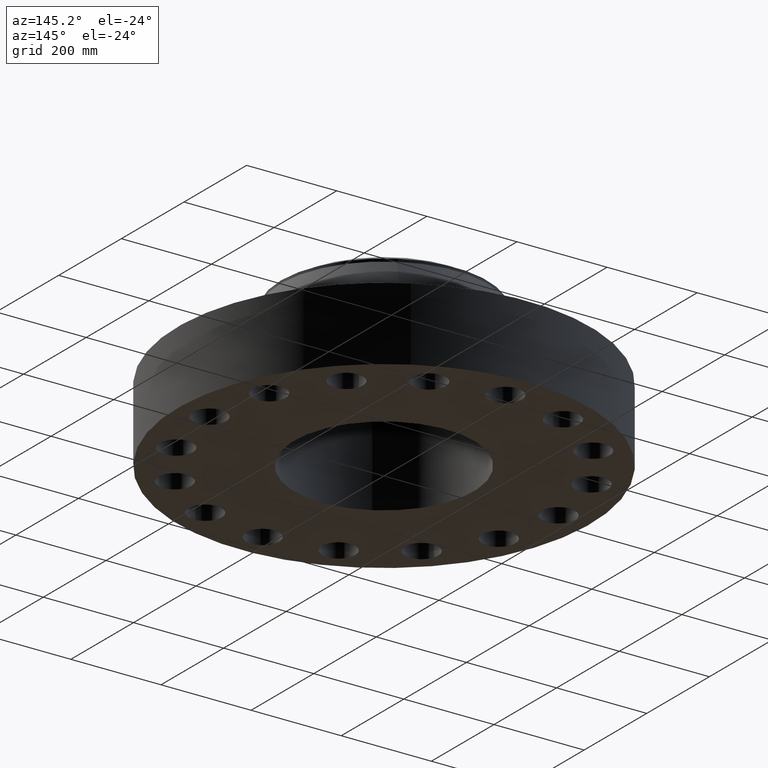
[diagram: clean part render]
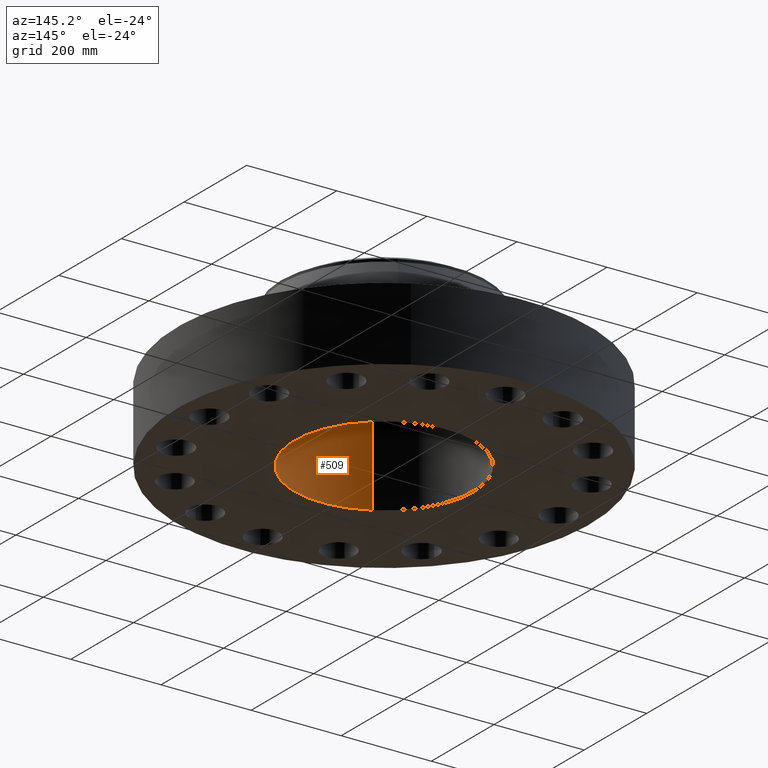
[diagram: same view with one face highlighted and labeled with its STEP entity id]
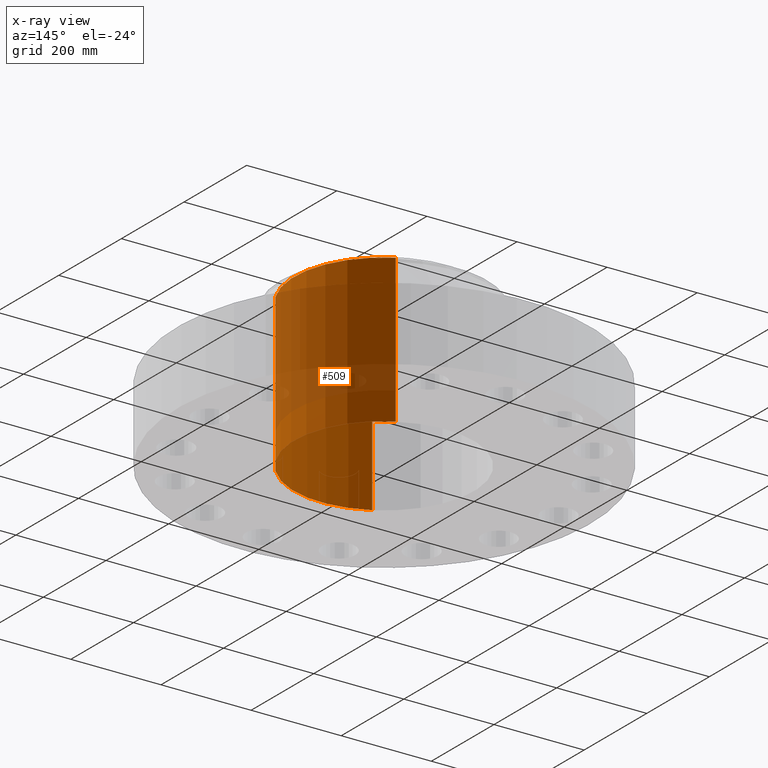
[diagram: x-ray of the same camera — body ghosted, the highlighted face saturated]
A machine part, auxiliary view. The second image highlights one B-rep face of the part: STEP entity #509.
The next image is the same camera in x-ray: the body ghosted, the highlighted face saturated — about 52% of this face is hidden behind the body in this view.
In plain terms, the highlighted cylindrical surface (partial cylindrical patch) has radius 199.238 mm, axis along (0, 0, -1).
Its self-contained STEP definition (entity closure, byte-faithful):
#444=AXIS2_PLACEMENT_3D('Circle Axis2P3D',#442,#443,$) ;
#470=AXIS2_PLACEMENT_3D('Cylinder Axis2P3D',#467,#468,#469) ;
#500=AXIS2_PLACEMENT_3D('Circle Axis2P3D',#498,#499,$) ;
#437=CARTESIAN_POINT('Vertex',(-3.76061392483,-6.8837576155,12.8800000001)) ;
#439=CARTESIAN_POINT('Vertex',(3.76061392483,6.8837576155,12.8800000001)) ;
#442=CARTESIAN_POINT('Axis2P3D Location',(0.,0.,12.8800000001)) ;
#467=CARTESIAN_POINT('Axis2P3D Location',(0.,0.,6.44000000003)) ;
#472=CARTESIAN_POINT('Line Origine',(-3.76061392483,-6.8837576155,6.44000000003)) ;
#476=CARTESIAN_POINT('Vertex',(-3.76061392483,-6.8837576155,-6.04241066631E-014)) ;
#483=CARTESIAN_POINT('Vertex',(3.76061392483,6.8837576155,-6.04241066631E-014)) ;
#486=CARTESIAN_POINT('Line Origine',(3.76061392483,6.8837576155,6.44000000003)) ;
#498=CARTESIAN_POINT('Axis2P3D Location',(0.,0.,-6.04241066631E-014)) ;
#443=DIRECTION('Axis2P3D Direction',(0.,0.,-0.0393700787402)) ;
#468=DIRECTION('Axis2P3D Direction',(0.,0.,-0.0393700787402)) ;
#469=DIRECTION('Axis2P3D XDirection',(0.0188750212049,0.0345504945626,0.)) ;
#473=DIRECTION('Vector Direction',(0.,0.,-0.0393700787402)) ;
#487=DIRECTION('Vector Direction',(0.,0.,-0.0393700787402)) ;
#499=DIRECTION('Axis2P3D Direction',(0.,0.,-0.0393700787402)) ;
#474=VECTOR('Line Direction',#473,0.0393700787402) ;
#488=VECTOR('Line Direction',#487,0.0393700787402) ;
#504=ORIENTED_EDGE('',*,*,#446,.F.) ;
#505=ORIENTED_EDGE('',*,*,#490,.T.) ;
#506=ORIENTED_EDGE('',*,*,#502,.T.) ;
#507=ORIENTED_EDGE('',*,*,#478,.F.) ;
#509=ADVANCED_FACE('PartBody',(#508),#471,.F.) ;
#445=CIRCLE('generated circle',#444,7.84400000003) ;
#501=CIRCLE('generated circle',#500,7.84400000003) ;
#471=CYLINDRICAL_SURFACE('generated cylinder',#470,7.84400000003) ;
#446=EDGE_CURVE('',#440,#438,#445,.T.) ;
#478=EDGE_CURVE('',#438,#477,#475,.T.) ;
#490=EDGE_CURVE('',#440,#484,#489,.T.) ;
#502=EDGE_CURVE('',#484,#477,#501,.T.) ;
#503=EDGE_LOOP('',(#504,#505,#506,#507)) ;
#508=FACE_OUTER_BOUND('',#503,.T.) ;
#475=LINE('Line',#472,#474) ;
#489=LINE('Line',#486,#488) ;
#438=VERTEX_POINT('',#437) ;
#440=VERTEX_POINT('',#439) ;
#477=VERTEX_POINT('',#476) ;
#484=VERTEX_POINT('',#483) ;